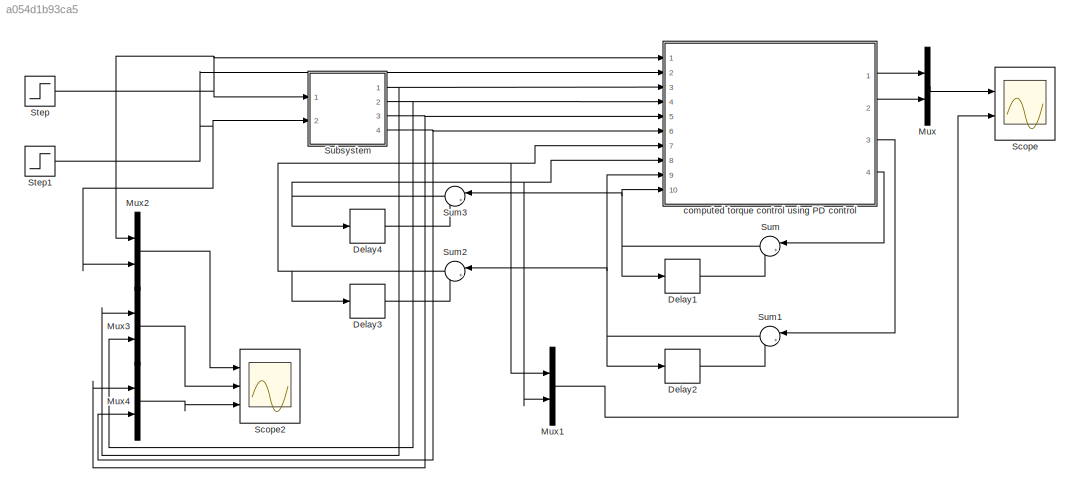
MODEL slx_a054d1b93ca5
KIND model
CONFIG AbsTol = auto
CONFIG FixedStep = auto
CONFIG MaxStep = auto
CONFIG MinStep = auto
CONFIG RelTol = 1e-3
CONFIG SampleTimeConstraint = Unconstrained
CONFIG Solver = ode3
CONFIG SolverMode = Auto
CONFIG SolverName = ode3
CONFIG StartTime = 0.0
CONFIG StopTime = 10
BLOCK [Delay] Delay1
  DelayLength = 1
  InitialCondition = 0
  InputPortMap = u0
  Ports = [1, 1]
  SampleTime = 1
BLOCK [Delay] Delay2
  DelayLength = 1
  InitialCondition = 0
  InputPortMap = u0
  Ports = [1, 1]
  SampleTime = 1
BLOCK [Delay] Delay3
  DelayLength = 1
  InitialCondition = 0
  InputPortMap = u0
  Ports = [1, 1]
  SampleTime = 1
BLOCK [Delay] Delay4
  DelayLength = 1
  InitialCondition = 0
  InputPortMap = u0
  Ports = [1, 1]
  SampleTime = 1
BLOCK [Mux] Mux
  DisplayOption = bar
  Inputs = 2
  Ports = [2, 1]
BLOCK [Mux] Mux1
  DisplayOption = bar
  Inputs = 2
  Ports = [2, 1]
BLOCK [Mux] Mux2
  DisplayOption = bar
  Inputs = 2
  Ports = [2, 1]
BLOCK [Mux] Mux3
  DisplayOption = bar
  Inputs = 2
  Ports = [2, 1]
BLOCK [Mux] Mux4
  DisplayOption = bar
  Inputs = 2
  Ports = [2, 1]
BLOCK [Scope] Scope
  Floating = off
  NumInputPorts = 2
  Ports = [2]
  YMax = 5~5
  YMin = -5~-5
BLOCK [Scope] Scope2
  Floating = off
  NumInputPorts = 3
  Ports = [3]
  SaveName = ScopeData2
  YMax = 5~5~5
  YMin = -5~-5~-5
BLOCK [Step] Step
  After = pi/3
  SampleTime = 0
  Time = 2
BLOCK [Step] Step1
  After = 0
  SampleTime = 0
  Time = 0
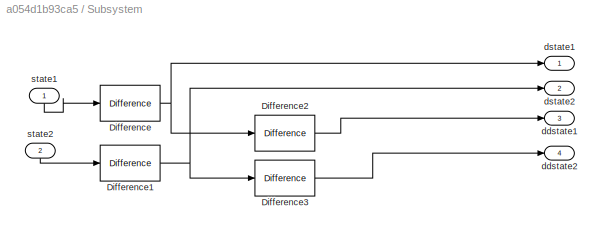
BLOCK [SubSystem] Subsystem
  Ports = [2, 4]
  RequestExecContextInheritance = off
BLOCK [Reference] Subsystem/Difference  REF=simulink/Discrete/Difference
  DoSatur = off
  ICPrevInput = 0.0
  InputProcessing = Inherited
  LockScale = off
  OutDataType = fixdt(1, 16)
  OutDataTypeStr = Inherit: Inherit via internal rule
  OutMax = []
  OutMin = []
  OutScaling = 2^-10
  OutputDataTypeScalingMode = Inherit via internal rule
  Ports = [1, 1]
  RndMeth = Floor
  SourceBlock = simulink/Discrete/Difference
  SourceType = Difference
BLOCK [Reference] Subsystem/Difference1  REF=simulink/Discrete/Difference
  DoSatur = off
  ICPrevInput = 0.0
  InputProcessing = Inherited
  LockScale = off
  OutDataType = fixdt(1, 16)
  OutDataTypeStr = Inherit: Inherit via internal rule
  OutMax = []
  OutMin = []
  OutScaling = 2^-10
  OutputDataTypeScalingMode = Inherit via internal rule
  Ports = [1, 1]
  RndMeth = Floor
  SourceBlock = simulink/Discrete/Difference
  SourceType = Difference
BLOCK [Reference] Subsystem/Difference2  REF=simulink/Discrete/Difference
  DoSatur = off
  ICPrevInput = 0.0
  InputProcessing = Inherited
  LockScale = off
  OutDataType = fixdt(1, 16)
  OutDataTypeStr = Inherit: Inherit via internal rule
  OutMax = []
  OutMin = []
  OutScaling = 2^-10
  OutputDataTypeScalingMode = Inherit via internal rule
  Ports = [1, 1]
  RndMeth = Floor
  SourceBlock = simulink/Discrete/Difference
  SourceType = Difference
BLOCK [Reference] Subsystem/Difference3  REF=simulink/Discrete/Difference
  DoSatur = off
  ICPrevInput = 0.0
  InputProcessing = Inherited
  LockScale = off
  OutDataType = fixdt(1, 16)
  OutDataTypeStr = Inherit: Inherit via internal rule
  OutMax = []
  OutMin = []
  OutScaling = 2^-10
  OutputDataTypeScalingMode = Inherit via internal rule
  Ports = [1, 1]
  RndMeth = Floor
  SourceBlock = simulink/Discrete/Difference
  SourceType = Difference
BLOCK [Outport] Subsystem/ddstate1
  IconDisplay = Port number
  Port = 3
BLOCK [Outport] Subsystem/ddstate2
  IconDisplay = Port number
  Port = 4
BLOCK [Outport] Subsystem/dstate1
  IconDisplay = Port number
BLOCK [Outport] Subsystem/dstate2
  IconDisplay = Port number
  Port = 2
BLOCK [Inport] Subsystem/state1
  IconDisplay = Port number
BLOCK [Inport] Subsystem/state2
  IconDisplay = Port number
  Port = 2
BLOCK [Sum] Sum
  IconShape = round
  InputSameDT = off
  Inputs = |++
  OutDataTypeStr = Inherit: Inherit via internal rule
  Ports = [2, 1]
  SaturateOnIntegerOverflow = off
BLOCK [Sum] Sum1
  IconShape = round
  InputSameDT = off
  Inputs = |++
  OutDataTypeStr = Inherit: Inherit via internal rule
  Ports = [2, 1]
  SaturateOnIntegerOverflow = off
BLOCK [Sum] Sum2
  IconShape = round
  InputSameDT = off
  Inputs = |++
  OutDataTypeStr = Inherit: Inherit via internal rule
  Ports = [2, 1]
  SaturateOnIntegerOverflow = off
BLOCK [Sum] Sum3
  IconShape = round
  InputSameDT = off
  Inputs = |++
  OutDataTypeStr = Inherit: Inherit via internal rule
  Ports = [2, 1]
  SaturateOnIntegerOverflow = off
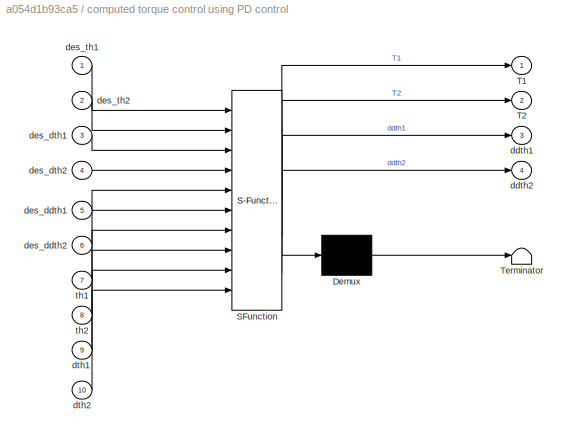
BLOCK [SubSystem] computed torque control using PD control
  ErrorFcn = Stateflow.Translate.translate
  PermitHierarchicalResolution = ExplicitOnly
  Ports = [10, 4]
  RequestExecContextInheritance = off
  SFBlockType = MATLAB Function
  TreatAsAtomicUnit = on
BLOCK [Demux] computed torque control using PD control/ Demux 
  Outputs = 1
  Ports = [1, 1]
BLOCK [S-Function] computed torque control using PD control/ SFunction 
  EnableBusSupport = on
  FunctionName = sf_sfun
  PortCounts = [10 5]
  Ports = [10, 5]
  Tag = Stateflow S-Function computedTorquePD 2
BLOCK [Terminator] computed torque control using PD control/ Terminator 
BLOCK [Outport] computed torque control using PD control/T1
  IconDisplay = Port number
BLOCK [Outport] computed torque control using PD control/T2
  IconDisplay = Port number
  Port = 2
BLOCK [Outport] computed torque control using PD control/ddth1
  IconDisplay = Port number
  Port = 3
BLOCK [Outport] computed torque control using PD control/ddth2
  IconDisplay = Port number
  Port = 4
BLOCK [Inport] computed torque control using PD control/des_ddth1
  IconDisplay = Port number
  Port = 5
BLOCK [Inport] computed torque control using PD control/des_ddth2
  IconDisplay = Port number
  Port = 6
BLOCK [Inport] computed torque control using PD control/des_dth1
  IconDisplay = Port number
  Port = 3
BLOCK [Inport] computed torque control using PD control/des_dth2
  IconDisplay = Port number
  Port = 4
BLOCK [Inport] computed torque control using PD control/des_th1
  IconDisplay = Port number
BLOCK [Inport] computed torque control using PD control/des_th2
  IconDisplay = Port number
  Port = 2
BLOCK [Inport] computed torque control using PD control/dth1
  IconDisplay = Port number
  Port = 9
BLOCK [Inport] computed torque control using PD control/dth2
  IconDisplay = Port number
  Port = 10
BLOCK [Inport] computed torque control using PD control/th1
  IconDisplay = Port number
  Port = 7
BLOCK [Inport] computed torque control using PD control/th2
  IconDisplay = Port number
  Port = 8
LINE Delay1:1 -> Sum:2
LINE Delay2:1 -> Sum1:2
LINE Delay3:1 -> Sum2:2
LINE Delay4:1 -> Sum3:2
LINE Mux1:1 -> Scope:2
LINE Mux2:1 -> Scope2:1
LINE Mux3:1 -> Scope2:2
LINE Mux4:1 -> Scope2:3
LINE Mux:1 -> Scope:1
NET Step1:1 -> Mux2:2, Subsystem:2, computed torque control using PD control:2
NET Step:1 -> Mux2:1, Subsystem:1, computed torque control using PD control:1
NET Subsystem/Difference1:1 -> Subsystem/Difference3:1, Subsystem/dstate2:1
LINE Subsystem/Difference2:1 -> Subsystem/ddstate1:1
LINE Subsystem/Difference3:1 -> Subsystem/ddstate2:1
NET Subsystem/Difference:1 -> Subsystem/Difference2:1, Subsystem/dstate1:1
LINE Subsystem/state1:1 -> Subsystem/Difference:1
LINE Subsystem/state2:1 -> Subsystem/Difference1:1
NET Subsystem:1 -> Mux3:1, computed torque control using PD control:3
NET Subsystem:2 -> Mux3:2, computed torque control using PD control:4
NET Subsystem:3 -> Mux4:1, computed torque control using PD control:5
NET Subsystem:4 -> Mux4:2, computed torque control using PD control:6
NET Sum1:1 -> Delay2:1, Sum2:1, computed torque control using PD control:9
NET Sum2:1 -> Delay3:1, Mux1:1, computed torque control using PD control:7
NET Sum3:1 -> Delay4:1, Mux1:2, computed torque control using PD control:8
NET Sum:1 -> Delay1:1, Sum3:1, computed torque control using PD control:10
LINE computed torque control using PD control:1 -> Mux:1
LINE computed torque control using PD control:2 -> Mux:2
LINE computed torque control using PD control:3 -> Sum1:1
LINE computed torque control using PD control:4 -> Sum:1
note: NET lines group one-source signal fan-out (src -> all destinations, sorted); 1:1 wires keep LINE
CHART computed torque control using PD control states=1 transitions=1
  STATE_LABEL 'eML_blk_kernel()'
  STATE_LABEL 'SCRIPT:\nfunction [T1,T2,ddth1,ddth2]    = fcn1(des_th1,des_th2,des_dth1,des_dth2,...\n                                    des_ddth1,des_ddth2,th1,th2,...\n                                    dth1,dth2)\n%computed torque control method PD control\na1 = 0.20; a2 = 0.40; m1 = 2; m2 = 2; g = 9.8;\nKp = diag([0.1 0.1],0);\nKd = diag([1 1],0);             %for critical damping\n\nh = 1;\ndes_dth1 = des_dth1/h;\nd...<+835ch>'
